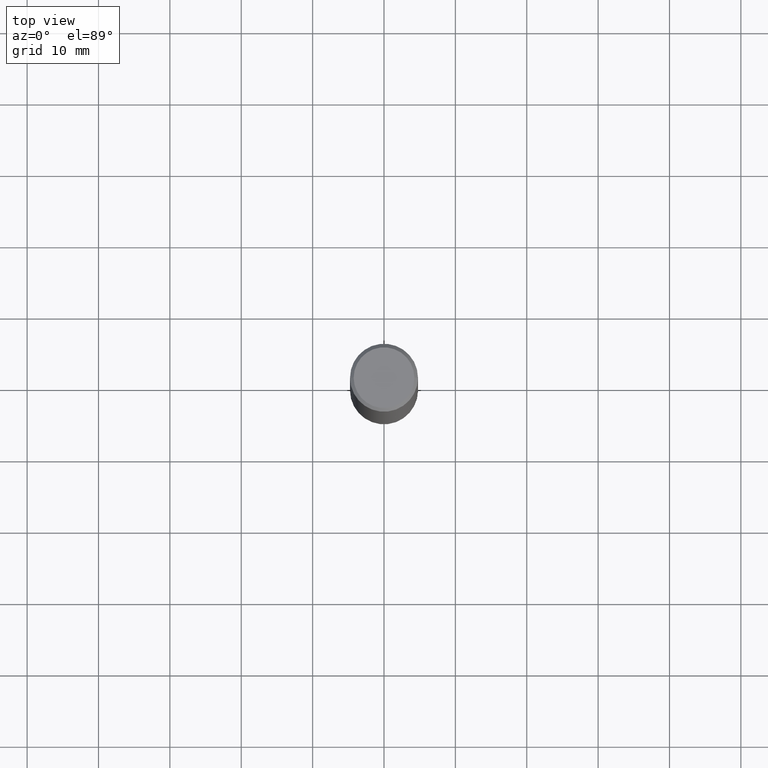
[diagram: clean part render]
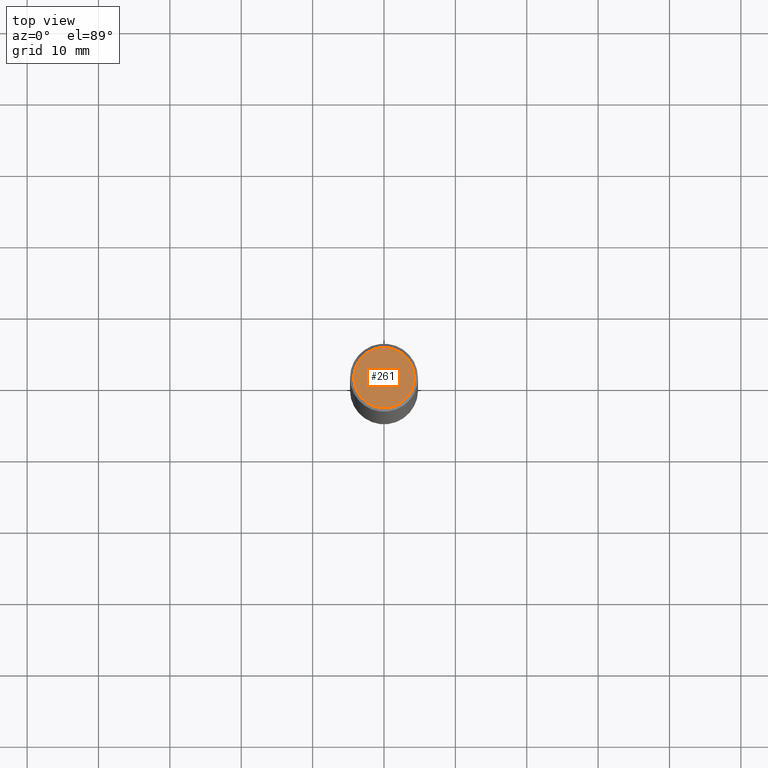
[diagram: same view with one face highlighted and labeled with its STEP entity id]
A machine part, top view. The second image highlights one B-rep face of the part: STEP entity #261.
In plain terms, the highlighted planar face has unit normal (0, -0, -1).
Its self-contained STEP definition (entity closure, byte-faithful):
#33 = DIRECTION ( 'NONE',  ( 1.000000000000000000, -6.982962677686266711E-15, 4.876176775795936353E-29 ) ) ;
#34 = PLANE ( 'NONE',  #72 ) ;
#37 = AXIS2_PLACEMENT_3D ( 'NONE', #299, #99, #33 ) ;
#45 = CIRCLE ( 'NONE', #256, 0.1674999999999997047 ) ;
#66 = CARTESIAN_POINT ( 'NONE',  ( 1.169646248512447623E-15, 0.1674999999999997047, -5.848231242562258822E-16 ) ) ;
#72 = AXIS2_PLACEMENT_3D ( 'NONE', #66, #189, #300 ) ;
#81 = EDGE_CURVE ( 'NONE', #201, #374, #45, .T. ) ;
#99 = DIRECTION ( 'NONE',  ( -2.445468806185136597E-29, 3.491481338843145583E-15, 1.000000000000000000 ) ) ;
#118 = FACE_OUTER_BOUND ( 'NONE', #375, .T. ) ;
#128 = CARTESIAN_POINT ( 'NONE',  ( 0.1674999999999997047, -1.252653207992876316E-15, 8.469775550109225372E-30 ) ) ;
#136 = ORIENTED_EDGE ( 'NONE', *, *, #211, .T. ) ;
#177 = DIRECTION ( 'NONE',  ( 1.000000000000000000, -6.982962677686266711E-15, 4.876176775795936353E-29 ) ) ;
#189 = DIRECTION ( 'NONE',  ( 2.438088387897960049E-29, -3.491481338843145188E-15, -1.000000000000000000 ) ) ;
#201 = VERTEX_POINT ( 'NONE', #128 ) ;
#211 = EDGE_CURVE ( 'NONE', #374, #201, #353, .T. ) ;
#256 = AXIS2_PLACEMENT_3D ( 'NONE', #349, #316, #177 ) ;
#261 = ADVANCED_FACE ( 'NONE', ( #118 ), #34, .F. ) ;
#263 = CARTESIAN_POINT ( 'NONE',  ( -0.1674999999999997047, 1.204561061900878878E-15, -8.301862719484099178E-30 ) ) ;
#299 = CARTESIAN_POINT ( 'NONE',  ( 0.000000000000000000, 0.000000000000000000, 0.000000000000000000 ) ) ;
#300 = DIRECTION ( 'NONE',  ( -1.000000000000000000, 6.982962677686265922E-15, -4.876176775795935793E-29 ) ) ;
#316 = DIRECTION ( 'NONE',  ( -2.445468806185136597E-29, 3.491481338843145583E-15, 1.000000000000000000 ) ) ;
#349 = CARTESIAN_POINT ( 'NONE',  ( 0.000000000000000000, 0.000000000000000000, 0.000000000000000000 ) ) ;
#353 = CIRCLE ( 'NONE', #37, 0.1674999999999997047 ) ;
#371 = ORIENTED_EDGE ( 'NONE', *, *, #81, .T. ) ;
#374 = VERTEX_POINT ( 'NONE', #263 ) ;
#375 = EDGE_LOOP ( 'NONE', ( #136, #371 ) ) ;